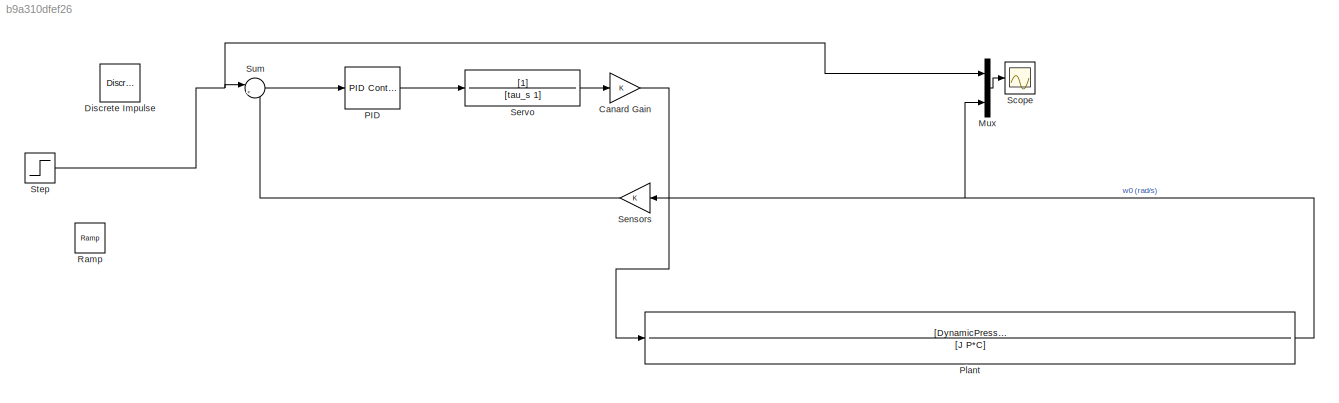
MODEL slx_b9a310dfef26
KIND model
CONFIG AbsTol = auto
CONFIG EnableMultiTasking = off
CONFIG FixedStep = auto
CONFIG MaxStep = auto
CONFIG MinStep = auto
CONFIG RelTol = 1e-3
CONFIG SampleTimeConstraint = Unconstrained
CONFIG SolverName = VariableStepAuto
CONFIG StartTime = 0.0
CONFIG StopTime = 200
BLOCK [Gain] Canard Gain
BLOCK [Reference] Discrete Impulse  REF=dspsrcs4/Discrete 
Impulse
  Ports = [0, 1]
  SourceBlock = dspsrcs4/Discrete \nImpulse
  SourceProductBaseCode = DS
  SourceType = Discrete Impulse
BLOCK [Mux] Mux
  DisplayOption = bar
  Inputs = 3
  Ports = [3, 1]
BLOCK [Reference] PID  REF=slpidlib/PID Controller
  Ports = [1, 1]
  SourceBlock = slpidlib/PID Controller
  SourceProductBaseCode = SL
  SourceType = PID 1dof
BLOCK [TransferFcn] Plant
  Denominator = [J P*C]
  Numerator = [DynamicPressure*Ar*Lr*(derivada_coef_f_aletas-derivada_coef_f_canards)]
BLOCK [Reference] Ramp  REF=simulink/Sources/Ramp
  Ports = [0, 1]
  SourceBlock = simulink/Sources/Ramp
  SourceProductBaseCode = SL
  SourceType = Ramp
BLOCK [Scope] Scope
  Floating = off
  NumInputPorts = 1
  Ports = [1]
  ScopeSpecificationString = Simulink.scopes.TimeScopeBlockCfg('CurrentConfiguration', extmgr.ConfigurationSet(extmgr.Configuration('Core','General UI',true),extmgr.Configuration('Core','Source UI',true),extmgr.Configuration('Sources','WiredSimulink',true),extmgr.Configuration('Visuals','Time Domain',true,'SerializedDisplays',{struct('MinYLimReal','-0.76538','MaxYLimReal','8.14116','YLabelReal','','MinYLimMag','0.00000','MaxY...<+1448ch>
BLOCK [Gain] Sensors
BLOCK [TransferFcn] Servo
  Denominator = [tau_s 1]
BLOCK [Step] Step
  After = 0
  Before = 10
  SampleTime = 0
  Time = 100
BLOCK [Sum] Sum
  Inputs = |+-
  Ports = [2, 1]
LINE Canard Gain:1 -> Plant:1
LINE Mux:1 -> Scope:1
LINE PID:1 -> Servo:1
NET Plant:1 -> Mux:3, Sensors:1
LINE Sensors:1 -> Sum:2
LINE Servo:1 -> Canard Gain:1
NET Step:1 -> Mux:1, Sum:1
LINE Sum:1 -> PID:1
note: NET lines group one-source signal fan-out (src -> all destinations, sorted); 1:1 wires keep LINE
